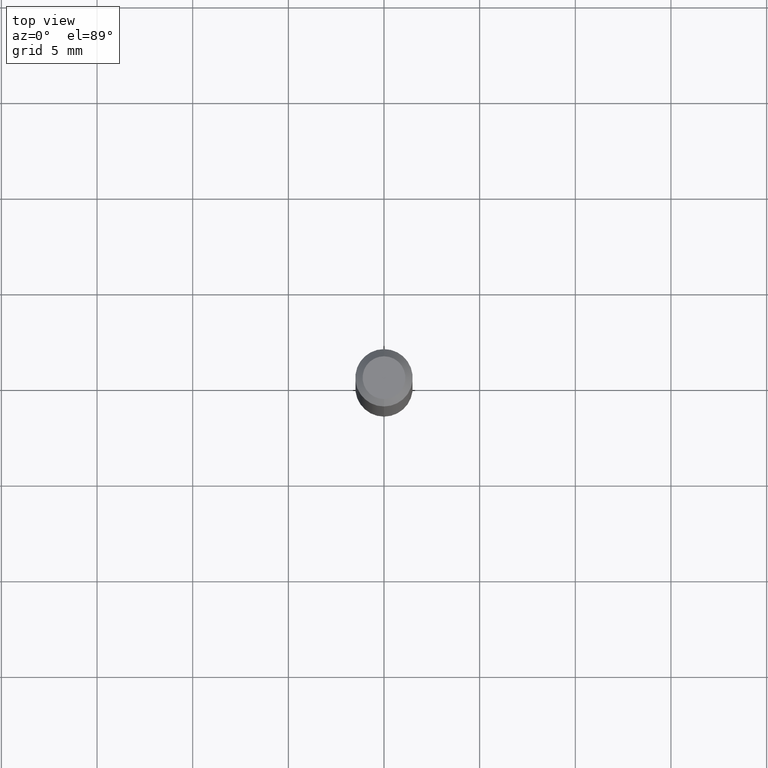
[diagram: clean part render]
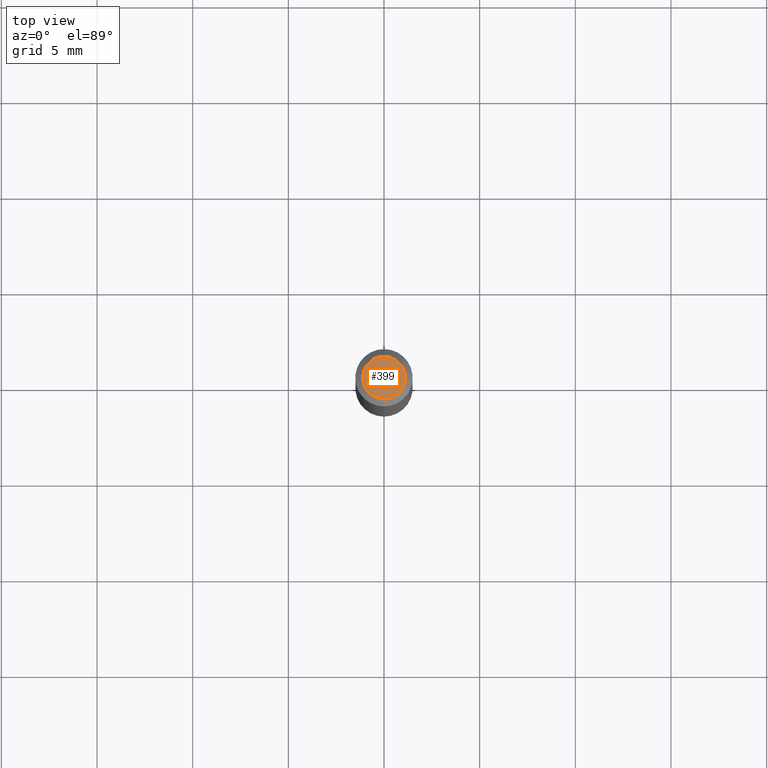
[diagram: same view with one face highlighted and labeled with its STEP entity id]
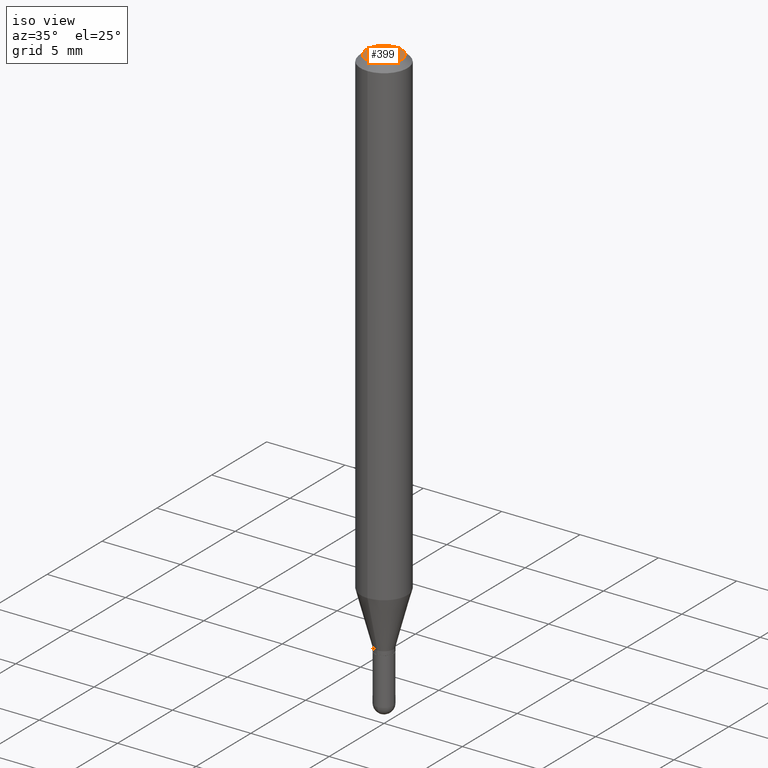
[diagram: same view with one face highlighted and labeled with its STEP entity id]
A machine part, top view. The second image highlights one B-rep face of the part: STEP entity #399.
A second angle (iso view) of the same face is appended — the face is thin or edge-on in the first view.
In plain terms, the highlighted planar face has unit normal (0, -0, -1).
Its self-contained STEP definition (entity closure, byte-faithful):
#13 = EDGE_CURVE ( 'NONE', #356, #191, #442, .T. ) ;
#20 = PLANE ( 'NONE',  #31 ) ;
#30 = ORIENTED_EDGE ( 'NONE', *, *, #416, .T. ) ;
#31 = AXIS2_PLACEMENT_3D ( 'NONE', #493, #378, #264 ) ;
#99 = DIRECTION ( 'NONE',  ( -2.445447466713837781E-29, 3.491511898180612883E-15, 1.000000000000000000 ) ) ;
#111 = CIRCLE ( 'NONE', #307, 0.04404999999999999888 ) ;
#141 = CARTESIAN_POINT ( 'NONE',  ( 5.835056949264010170E-46, -8.331060487794481597E-32, -2.386089674257075176E-17 ) ) ;
#175 = CARTESIAN_POINT ( 'NONE',  ( 5.835056949264010170E-46, -8.331060487794481597E-32, -2.386089674257075176E-17 ) ) ;
#191 = VERTEX_POINT ( 'NONE', #327 ) ;
#194 = AXIS2_PLACEMENT_3D ( 'NONE', #175, #295, #198 ) ;
#198 = DIRECTION ( 'NONE',  ( -6.982962677686265133E-15, -1.000000000000000000, 3.491511898180612883E-15 ) ) ;
#223 = DIRECTION ( 'NONE',  ( -6.982962677686265133E-15, -1.000000000000000000, 3.491511898180612883E-15 ) ) ;
#264 = DIRECTION ( 'NONE',  ( 6.982962677686265922E-15, 1.000000000000000000, -3.491511898180613277E-15 ) ) ;
#295 = DIRECTION ( 'NONE',  ( -2.445447466713837781E-29, 3.491511898180612883E-15, 1.000000000000000000 ) ) ;
#307 = AXIS2_PLACEMENT_3D ( 'NONE', #141, #99, #223 ) ;
#322 = EDGE_LOOP ( 'NONE', ( #484, #30 ) ) ;
#327 = CARTESIAN_POINT ( 'NONE',  ( -3.536586717851222218E-16, -0.04404999999999999888, 1.299402023722852292E-16 ) ) ;
#334 = FACE_OUTER_BOUND ( 'NONE', #322, .T. ) ;
#356 = VERTEX_POINT ( 'NONE', #359 ) ;
#359 = CARTESIAN_POINT ( 'NONE',  ( 3.599717260347271507E-16, 0.04404999999999999888, -1.776619958574267450E-16 ) ) ;
#378 = DIRECTION ( 'NONE',  ( 2.445447466713837220E-29, -3.491511898180613277E-15, -1.000000000000000000 ) ) ;
#399 = ADVANCED_FACE ( 'NONE', ( #334 ), #20, .F. ) ;
#416 = EDGE_CURVE ( 'NONE', #191, #356, #111, .T. ) ;
#442 = CIRCLE ( 'NONE', #194, 0.04404999999999999888 ) ;
#484 = ORIENTED_EDGE ( 'NONE', *, *, #13, .T. ) ;
#493 = CARTESIAN_POINT ( 'NONE',  ( 3.075995059520799729E-16, 0.04404999999999999888, -1.657315474861413661E-16 ) ) ;